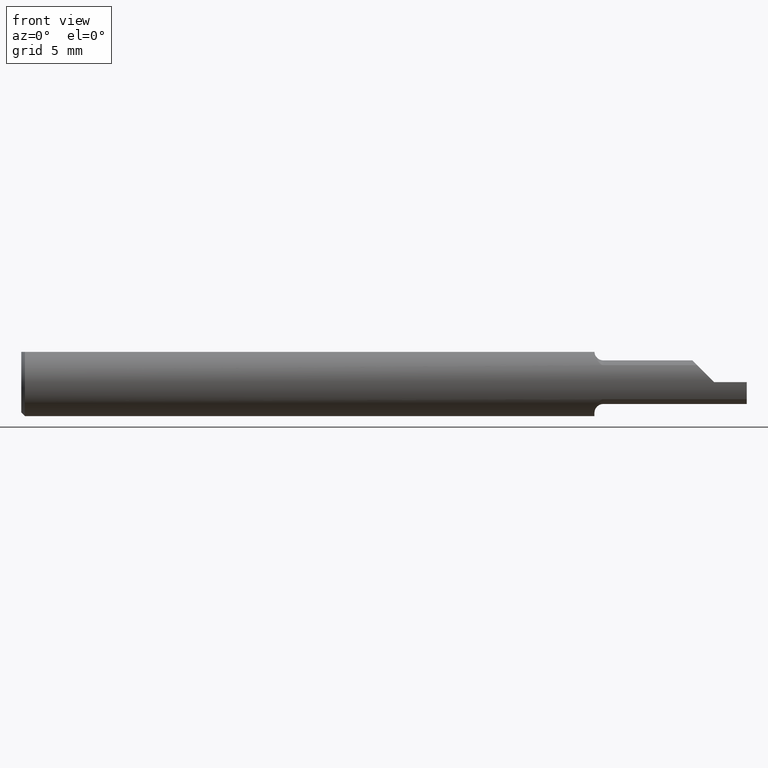
[diagram: clean part render]
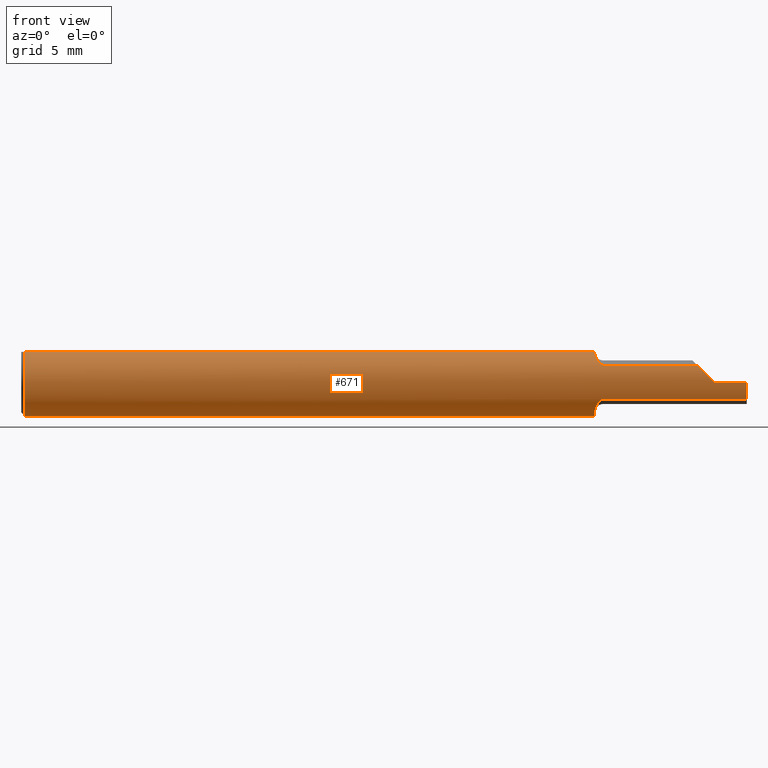
[diagram: same view with one face highlighted and labeled with its STEP entity id]
A machine part, front view. The second image highlights one B-rep face of the part: STEP entity #671.
In plain terms, the highlighted cylindrical surface (edge-blend (fillet) strip) has radius 2.3774 mm, axis along (-1, -0, -0).
Its self-contained STEP definition (entity closure, byte-faithful):
#4 = ORIENTED_EDGE ( 'NONE', *, *, #611, .F. ) ;
#5 = CARTESIAN_POINT ( 'NONE',  ( 1.604999999999999982, -0.08098532110091725966, 0.04692907165266890779 ) ) ;
#30 = LINE ( 'NONE', #311, #176 ) ;
#33 = CARTESIAN_POINT ( 'NONE',  ( 2.999519565323742037E-32, -0.09359999999999998876, 2.449293598294716768E-16 ) ) ;
#54 = CARTESIAN_POINT ( 'NONE',  ( 1.599896904768519645, -0.08038899622277627388, 0.04797029363367905086 ) ) ;
#61 = VECTOR ( 'NONE', #261, 39.37007874015748143 ) ;
#65 = CARTESIAN_POINT ( 'NONE',  ( 1.594147244866249480, -0.07760540797414829106, 0.05237236133055872545 ) ) ;
#67 = EDGE_CURVE ( 'NONE', #744, #851, #752, .T. ) ;
#90 = ORIENTED_EDGE ( 'NONE', *, *, #861, .T. ) ;
#95 = CARTESIAN_POINT ( 'NONE',  ( 1.604999999999999982, -0.08098532110091725966, -0.04692907165266892167 ) ) ;
#99 = CARTESIAN_POINT ( 'NONE',  ( 1.877413950203119297, -0.08929676188099791578, 0.03258604979688042858 ) ) ;
#103 = EDGE_CURVE ( 'NONE', #833, #274, #832, .T. ) ;
#115 = CARTESIAN_POINT ( 'NONE',  ( 1.580094781996997266, -0.04360000000000008313, -0.08282511696339457663 ) ) ;
#122 = CARTESIAN_POINT ( 'NONE',  ( 1.587498641497527396, -0.07093482612079118899, 0.06125760364160525578 ) ) ;
#126 = CIRCLE ( 'NONE', #418, 0.09360000000000001652 ) ;
#140 = LINE ( 'NONE', #351, #654 ) ;
#142 = EDGE_CURVE ( 'NONE', #554, #565, #140, .T. ) ;
#150 = DIRECTION ( 'NONE',  ( -1.000000000000000000, -0.000000000000000000, -0.000000000000000000 ) ) ;
#153 = EDGE_CURVE ( 'NONE', #774, #880, #562, .T. ) ;
#156 = DIRECTION ( 'NONE',  ( 1.000000000000000000, 0.000000000000000000, 0.000000000000000000 ) ) ;
#164 = ORIENTED_EDGE ( 'NONE', *, *, #729, .T. ) ;
#174 = CARTESIAN_POINT ( 'NONE',  ( 1.863070928347330790, -0.08098532110091727354, 0.04692907165266886615 ) ) ;
#176 = VECTOR ( 'NONE', #236, 39.37007874015748143 ) ;
#188 = ORIENTED_EDGE ( 'NONE', *, *, #103, .F. ) ;
#208 = CARTESIAN_POINT ( 'NONE',  ( 1.580031547830867300, -0.04222443281744116955, -0.08354922978518600218 ) ) ;
#236 = DIRECTION ( 'NONE',  ( 1.000000000000000000, 0.000000000000000000, 0.000000000000000000 ) ) ;
#240 = CARTESIAN_POINT ( 'NONE',  ( 1.582237770890208006, -0.06089341461791561438, -0.07174628489556632294 ) ) ;
#243 = EDGE_LOOP ( 'NONE', ( #188, #164, #90, #675, #519, #4, #741, #638, #525, #650, #907, #402, #531, #443 ) ) ;
#255 = CARTESIAN_POINT ( 'NONE',  ( 1.580000000000000071, 0.04209513035969860567, 0.08359999999999989662 ) ) ;
#261 = DIRECTION ( 'NONE',  ( 1.000000000000000000, 0.000000000000000000, 0.000000000000000000 ) ) ;
#263 = VERTEX_POINT ( 'NONE', #711 ) ;
#271 = CARTESIAN_POINT ( 'NONE',  ( 1.580094781996996156, -0.04359999999997420800, 0.08282511696340821850 ) ) ;
#273 = AXIS2_PLACEMENT_3D ( 'NONE', #498, #156, #350 ) ;
#274 = VERTEX_POINT ( 'NONE', #656 ) ;
#299 = VERTEX_POINT ( 'NONE', #843 ) ;
#303 = LINE ( 'NONE', #33, #518 ) ;
#310 = CARTESIAN_POINT ( 'NONE',  ( 1.580094781996996156, -0.04359999999997420800, 0.08282511696340821850 ) ) ;
#311 = CARTESIAN_POINT ( 'NONE',  ( 0.000000000000000000, -0.04209513035969860567, 0.08359999999999989662 ) ) ;
#314 = EDGE_CURVE ( 'NONE', #737, #851, #568, .T. ) ;
#315 = EDGE_CURVE ( 'NONE', #263, #896, #555, .T. ) ;
#322 = CARTESIAN_POINT ( 'NONE',  ( 1.595826073543174406, -0.07869351143461396358, -0.05070416438095075307 ) ) ;
#332 = CARTESIAN_POINT ( 'NONE',  ( 1.580038474846761076, -0.04209513035969859179, 0.08359999999999992437 ) ) ;
#336 = CARTESIAN_POINT ( 'NONE',  ( 1.604999999999999982, -0.08098532110091725966, 0.04692907165266890779 ) ) ;
#347 = B_SPLINE_CURVE_WITH_KNOTS ( 'NONE', 3,
 ( #95, #664, #660, #322, #391, #864, #582, #240, #594, #588 ),
 .UNSPECIFIED., .F., .F.,
 ( 4, 2, 2, 2, 4 ),
 ( 1.965537463864899167E-07, 0.0001973984247313824122, 0.0003946002957163783015, 0.0007890040376863827112, 0.001577811521626391964 ),
 .UNSPECIFIED. ) ;
#348 = CARTESIAN_POINT ( 'NONE',  ( 1.778530344885397296, -0.08098532110091721803, -0.04692907165266892860 ) ) ;
#350 = DIRECTION ( 'NONE',  ( 0.000000000000000000, 0.000000000000000000, -1.000000000000000000 ) ) ;
#351 = CARTESIAN_POINT ( 'NONE',  ( 0.000000000000000000, 0.04209513035969860567, 0.08359999999999989662 ) ) ;
#373 = CIRCLE ( 'NONE', #591, 0.09360000000000001652 ) ;
#379 = EDGE_CURVE ( 'NONE', #263, #774, #30, .T. ) ;
#391 = CARTESIAN_POINT ( 'NONE',  ( 1.594156327181491362, -0.07761217964283799453, -0.05236252367802086971 ) ) ;
#396 = EDGE_CURVE ( 'NONE', #274, #465, #347, .T. ) ;
#399 = CARTESIAN_POINT ( 'NONE',  ( 1.589679269687736429, -0.07392535378945654101, 0.05756749412466346388 ) ) ;
#402 = ORIENTED_EDGE ( 'NONE', *, *, #645, .F. ) ;
#418 = AXIS2_PLACEMENT_3D ( 'NONE', #840, #150, #631 ) ;
#420 = DIRECTION ( 'NONE',  ( 0.000000000000000000, 0.000000000000000000, -1.000000000000000000 ) ) ;
#423 = CARTESIAN_POINT ( 'NONE',  ( 1.580000000000000071, 0.000000000000000000, 0.000000000000000000 ) ) ;
#435 = B_SPLINE_CURVE_WITH_KNOTS ( 'NONE', 3,
 ( #478, #208, #484, #747 ),
 .UNSPECIFIED., .F., .F.,
 ( 4, 4 ),
 ( 0.001577811521626391964, 0.001696640922079448947 ),
 .UNSPECIFIED. ) ;
#437 = CARTESIAN_POINT ( 'NONE',  ( 1.863070928347330790, -0.08098532110091727354, 0.04692907165266886615 ) ) ;
#443 = ORIENTED_EDGE ( 'NONE', *, *, #396, .F. ) ;
#463 = CARTESIAN_POINT ( 'NONE',  ( 1.584005041357615218, -0.06425957438758486684, 0.06822719883027100751 ) ) ;
#465 = VERTEX_POINT ( 'NONE', #115 ) ;
#478 = CARTESIAN_POINT ( 'NONE',  ( 1.580094781996997266, -0.04360000000000008313, -0.08282511696339457663 ) ) ;
#481 = AXIS2_PLACEMENT_3D ( 'NONE', #776, #513, #796 ) ;
#484 = CARTESIAN_POINT ( 'NONE',  ( 1.580000000000000071, -0.04082923651060772763, -0.08423993875433578860 ) ) ;
#491 = AXIS2_PLACEMENT_3D ( 'NONE', #775, #705, #503 ) ;
#498 = CARTESIAN_POINT ( 'NONE',  ( 0.009999999999999877043, 0.000000000000000000, 0.000000000000000000 ) ) ;
#503 = DIRECTION ( 'NONE',  ( 0.000000000000000000, 0.000000000000000000, 1.000000000000000000 ) ) ;
#505 = CARTESIAN_POINT ( 'NONE',  ( 1.893422837281476312, -0.09360000000000001652, 0.01657716271852365669 ) ) ;
#509 = DIRECTION ( 'NONE',  ( 1.000000000000000000, 0.000000000000000000, 0.000000000000000000 ) ) ;
#513 = DIRECTION ( 'NONE',  ( 1.000000000000000000, 0.000000000000000000, 0.000000000000000000 ) ) ;
#518 = VECTOR ( 'NONE', #855, 39.37007874015748143 ) ;
#519 = ORIENTED_EDGE ( 'NONE', *, *, #67, .F. ) ;
#521 = EDGE_CURVE ( 'NONE', #465, #299, #435, .T. ) ;
#525 = ORIENTED_EDGE ( 'NONE', *, *, #315, .T. ) ;
#531 = ORIENTED_EDGE ( 'NONE', *, *, #521, .F. ) ;
#534 = CARTESIAN_POINT ( 'NONE',  ( 0.009999999999999877043, 0.04209513035969860567, 0.08359999999999989662 ) ) ;
#535 = CARTESIAN_POINT ( 'NONE',  ( 1.580053101724402165, -0.04260014805027864671, 0.08334570830718984746 ) ) ;
#538 = DIRECTION ( 'NONE',  ( -1.000000000000000000, -0.000000000000000000, -0.000000000000000000 ) ) ;
#542 = CARTESIAN_POINT ( 'NONE',  ( 1.602371787395292513, -0.08098532110167186437, 0.04692907165136673414 ) ) ;
#554 = VERTEX_POINT ( 'NONE', #255 ) ;
#555 = CIRCLE ( 'NONE', #481, 0.09360000000000001652 ) ;
#562 = B_SPLINE_CURVE_WITH_KNOTS ( 'NONE', 3,
 ( #332, #535, #821, #271 ),
 .UNSPECIFIED., .F., .F.,
 ( 4, 4 ),
 ( 4.385876849698906043E-07, 4.292427911745016534E-05 ),
 .UNSPECIFIED. ) ;
#565 = VERTEX_POINT ( 'NONE', #534 ) ;
#568 =( BOUNDED_CURVE ( )  B_SPLINE_CURVE ( 3, ( #784, #505, #99, #174 ),
 .UNSPECIFIED., .F., .T. ) 
 B_SPLINE_CURVE_WITH_KNOTS ( ( 4, 4 ),
 ( 4.712388980384689674, 5.237580787391525661 ),
 .UNSPECIFIED. ) 
 CURVE ( )  GEOMETRIC_REPRESENTATION_ITEM ( )  RATIONAL_B_SPLINE_CURVE ( ( 1.000000000000000000, 0.9771462443114828922, 0.9771462443114828922, 1.000000000000000000 ) ) 
 REPRESENTATION_ITEM ( '' )  );
#582 = CARTESIAN_POINT ( 'NONE',  ( 1.587525166150608236, -0.07098019297973734432, -0.06120797774469886876 ) ) ;
#588 = CARTESIAN_POINT ( 'NONE',  ( 1.580094781996997266, -0.04360000000000008313, -0.08282511696339457663 ) ) ;
#591 = AXIS2_PLACEMENT_3D ( 'NONE', #423, #509, #420 ) ;
#594 = CARTESIAN_POINT ( 'NONE',  ( 1.580514539929745554, -0.05273122244265960462, -0.07801834683017626337 ) ) ;
#599 = CARTESIAN_POINT ( 'NONE',  ( 0.009999999999999877043, 0.000000000000000000, -0.09360000000000001652 ) ) ;
#601 = VERTEX_POINT ( 'NONE', #830 ) ;
#610 = CARTESIAN_POINT ( 'NONE',  ( 1.778530344885397296, -0.08098532110091721803, 0.04692907165266892860 ) ) ;
#611 = EDGE_CURVE ( 'NONE', #880, #744, #616, .T. ) ;
#616 = B_SPLINE_CURVE_WITH_KNOTS ( 'NONE', 3,
 ( #825, #750, #815, #899, #463, #122, #399, #65, #686, #54, #542, #336 ),
 .UNSPECIFIED., .F., .F.,
 ( 4, 2, 2, 2, 2, 4 ),
 ( 4.292427911745016534E-05, 0.0004322602379663570806, 0.0008215961968152643482, 0.001210932155664171724, 0.001405600135088625521, 0.001600268114513079317 ),
 .UNSPECIFIED. ) ;
#631 = DIRECTION ( 'NONE',  ( 0.000000000000000000, 0.000000000000000000, 1.000000000000000000 ) ) ;
#638 = ORIENTED_EDGE ( 'NONE', *, *, #379, .F. ) ;
#640 = CARTESIAN_POINT ( 'NONE',  ( 1.910000000000000142, -0.09360000000000005815, 1.102182119232621301E-17 ) ) ;
#643 = CIRCLE ( 'NONE', #273, 0.09360000000000001652 ) ;
#645 = EDGE_CURVE ( 'NONE', #299, #554, #373, .T. ) ;
#650 = ORIENTED_EDGE ( 'NONE', *, *, #723, .T. ) ;
#654 = VECTOR ( 'NONE', #538, 39.37007874015748143 ) ;
#656 = CARTESIAN_POINT ( 'NONE',  ( 1.604999999999999982, -0.08098532110091725966, -0.04692907165266892167 ) ) ;
#660 = CARTESIAN_POINT ( 'NONE',  ( 1.599926490776608423, -0.08039993130174968861, -0.04795239383132110511 ) ) ;
#664 = CARTESIAN_POINT ( 'NONE',  ( 1.602366886948793478, -0.08098532110091721803, -0.04692907165266896330 ) ) ;
#671 = ADVANCED_FACE ( 'NONE', ( #770 ), #846, .T. ) ;
#675 = ORIENTED_EDGE ( 'NONE', *, *, #314, .T. ) ;
#686 = CARTESIAN_POINT ( 'NONE',  ( 1.595834938507529221, -0.07869581624978984336, 0.05070018037232462693 ) ) ;
#700 = DIRECTION ( 'NONE',  ( -1.000000000000000000, -0.000000000000000000, -0.000000000000000000 ) ) ;
#705 = DIRECTION ( 'NONE',  ( -1.000000000000000000, -0.000000000000000000, -0.000000000000000000 ) ) ;
#711 = CARTESIAN_POINT ( 'NONE',  ( 0.009999999999999877043, -0.04209513035969860567, 0.08359999999999989662 ) ) ;
#723 = EDGE_CURVE ( 'NONE', #896, #565, #643, .T. ) ;
#729 = EDGE_CURVE ( 'NONE', #833, #601, #126, .T. ) ;
#731 = CARTESIAN_POINT ( 'NONE',  ( 2.000000000000000000, -0.08098532110091713476, -0.04692907165266897024 ) ) ;
#737 = VERTEX_POINT ( 'NONE', #640 ) ;
#741 = ORIENTED_EDGE ( 'NONE', *, *, #153, .F. ) ;
#744 = VERTEX_POINT ( 'NONE', #5 ) ;
#747 = CARTESIAN_POINT ( 'NONE',  ( 1.580000000000000071, -0.03941422018348617051, -0.08489687419055939877 ) ) ;
#750 = CARTESIAN_POINT ( 'NONE',  ( 1.580304672070561134, -0.04816585284211998691, 0.08042160470509923664 ) ) ;
#752 = LINE ( 'NONE', #610, #61 ) ;
#770 = FACE_OUTER_BOUND ( 'NONE', #243, .T. ) ;
#774 = VERTEX_POINT ( 'NONE', #849 ) ;
#775 = CARTESIAN_POINT ( 'NONE',  ( 0.000000000000000000, 0.000000000000000000, 0.000000000000000000 ) ) ;
#776 = CARTESIAN_POINT ( 'NONE',  ( 0.009999999999999877043, 0.000000000000000000, 0.000000000000000000 ) ) ;
#780 = VECTOR ( 'NONE', #700, 39.37007874015748143 ) ;
#784 = CARTESIAN_POINT ( 'NONE',  ( 1.910000000000000142, -0.09360000000000005815, 1.102182119232621301E-17 ) ) ;
#796 = DIRECTION ( 'NONE',  ( 0.000000000000000000, 0.000000000000000000, -1.000000000000000000 ) ) ;
#815 = CARTESIAN_POINT ( 'NONE',  ( 1.580853633927959745, -0.05245123992563936050, 0.07768659907935462905 ) ) ;
#821 = CARTESIAN_POINT ( 'NONE',  ( 1.580071878063521007, -0.04310175828721044683, 0.08308739656497032833 ) ) ;
#825 = CARTESIAN_POINT ( 'NONE',  ( 1.580094781996996156, -0.04359999999997420800, 0.08282511696340821850 ) ) ;
#830 = CARTESIAN_POINT ( 'NONE',  ( 2.000000000000000000, -0.09360000000000001652, 0.000000000000000000 ) ) ;
#832 = LINE ( 'NONE', #348, #780 ) ;
#833 = VERTEX_POINT ( 'NONE', #731 ) ;
#840 = CARTESIAN_POINT ( 'NONE',  ( 2.000000000000000000, 0.000000000000000000, 0.000000000000000000 ) ) ;
#843 = CARTESIAN_POINT ( 'NONE',  ( 1.580000000000000071, -0.03941422018348617051, -0.08489687419055939877 ) ) ;
#846 = CYLINDRICAL_SURFACE ( 'NONE', #491, 0.09360000000000001652 ) ;
#849 = CARTESIAN_POINT ( 'NONE',  ( 1.580038474846761076, -0.04209513035969859179, 0.08359999999999992437 ) ) ;
#851 = VERTEX_POINT ( 'NONE', #437 ) ;
#855 = DIRECTION ( 'NONE',  ( -1.000000000000000000, -0.000000000000000000, -0.000000000000000000 ) ) ;
#861 = EDGE_CURVE ( 'NONE', #601, #737, #303, .T. ) ;
#864 = CARTESIAN_POINT ( 'NONE',  ( 1.589675976328916551, -0.07392405567192701643, -0.05756988146928603001 ) ) ;
#880 = VERTEX_POINT ( 'NONE', #310 ) ;
#896 = VERTEX_POINT ( 'NONE', #599 ) ;
#899 = CARTESIAN_POINT ( 'NONE',  ( 1.582696044340125008, -0.06048679359449132126, 0.07160787698927238709 ) ) ;
#907 = ORIENTED_EDGE ( 'NONE', *, *, #142, .F. ) ;